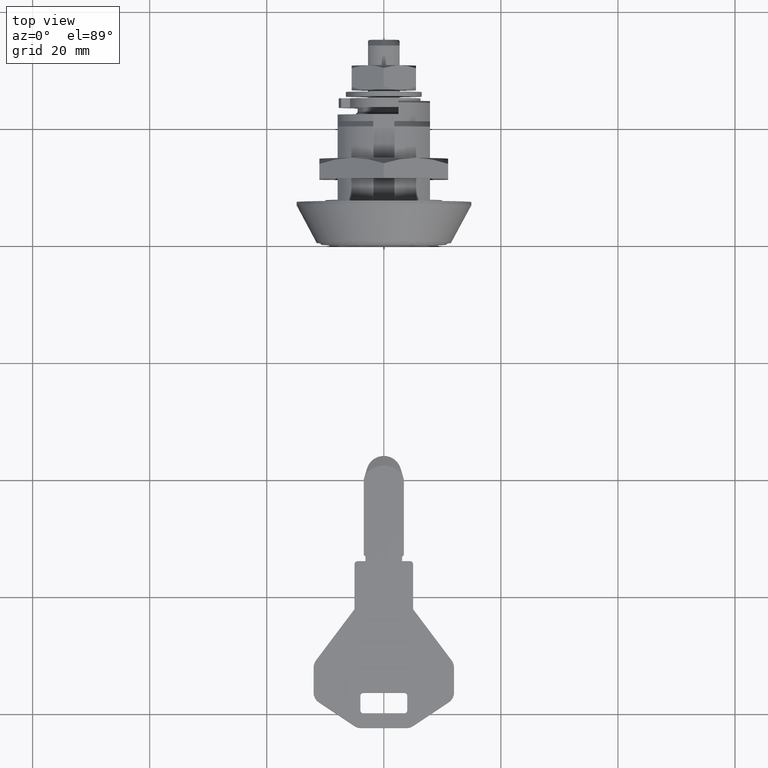
[diagram: clean part render]
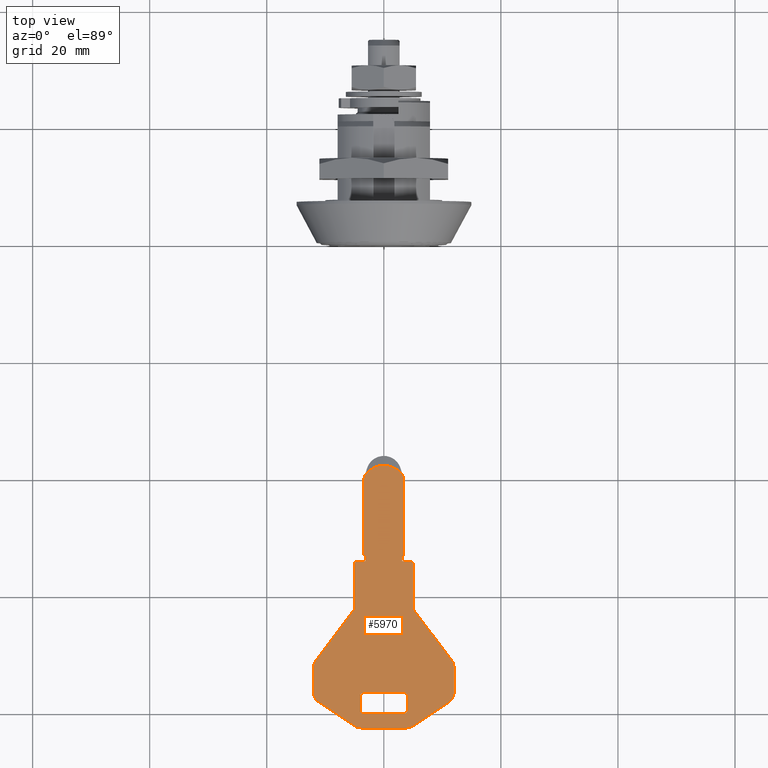
[diagram: same view with one face highlighted and labeled with its STEP entity id]
A machine part, top view. The second image highlights one B-rep face of the part: STEP entity #5970.
In plain terms, the highlighted face is a freeform B-spline surface patch.
Its self-contained STEP definition (entity closure, byte-faithful):
#5231=CARTESIAN_POINT('',(-39.328578723186801,3.202507733584880,0.999999999996405));
#5232=VERTEX_POINT('',#5231);
#5240=CARTESIAN_POINT('',(-39.328578274685853,-3.202507397941295,0.999999999996405));
#5241=VERTEX_POINT('',#5240);
#5242=CARTESIAN_POINT('',(-39.328578723186801,3.202507733584878,0.999999999996405));
#5243=CARTESIAN_POINT('',(-37.725231574246756,2.002614833839296,0.999999999996405));
#5244=CARTESIAN_POINT('',(-37.725231434016862,0.000000280093609,0.999999999996405));
#5245=CARTESIAN_POINT('',(-37.725231293786976,-2.002614273652079,0.999999999996405));
#5246=CARTESIAN_POINT('',(-39.328578274685853,-3.202507397941294,0.999999999996405));
#5254=(BOUNDED_CURVE()B_SPLINE_CURVE(2,(#5242,#5243,#5244,#5245,#5246),.UNSPECIFIED.,.F.,.U.)B_SPLINE_CURVE_WITH_KNOTS((3,2,3),(0.0,0.500000000000000,1.0),.UNSPECIFIED.)CURVE()GEOMETRIC_REPRESENTATION_ITEM()RATIONAL_B_SPLINE_CURVE((1.0,0.894193277141507,1.0,0.894193277141507,1.0))REPRESENTATION_ITEM(''));
#5255=EDGE_CURVE('',#5232,#5241,#5254,.T.);
#5619=CARTESIAN_POINT('',(-84.820265168130575,13.198799953479870,0.999999999996405));
#5620=CARTESIAN_POINT('',(-35.484745590624840,13.198799953479870,0.999999999996405));
#5621=CARTESIAN_POINT('',(-84.820265168130575,-13.198800597217121,0.999999999996405));
#5622=CARTESIAN_POINT('',(-35.484745590624840,-13.198800597217121,0.999999999996405));
#5623=B_SPLINE_SURFACE_WITH_KNOTS('',1,1,((#5619,#5621),(#5620,#5622)),.UNSPECIFIED.,.F.,.F.,.U.,(2,2),(2,2),(0.0,49.335519577505742),(0.0,26.397600550696989),.UNSPECIFIED.);
#5624=ORIENTED_EDGE('',*,*,#5255,.F.);
#5625=CARTESIAN_POINT('',(-40.079782934016862,3.424999999996415,0.999999999996448));
#5626=VERTEX_POINT('',#5625);
#5627=CARTESIAN_POINT('',(-39.328578723186801,3.202507733584880,0.999999999996405));
#5628=CARTESIAN_POINT('',(-40.079782934016862,3.424999999996415,0.999999999996448));
#5629=QUASI_UNIFORM_CURVE('',1,(#5627,#5628),.UNSPECIFIED.,.F.,.U.);
#5630=EDGE_CURVE('',#5232,#5626,#5629,.T.);
#5631=ORIENTED_EDGE('',*,*,#5630,.T.);
#5632=CARTESIAN_POINT('',(-52.979782934016903,3.424999999996415,0.999999999996448));
#5633=VERTEX_POINT('',#5632);
#5634=CARTESIAN_POINT('',(-40.079782934016862,3.424999999996415,0.999999999996448));
#5635=CARTESIAN_POINT('',(-52.979782934016903,3.424999999996415,0.999999999996448));
#5636=QUASI_UNIFORM_CURVE('',1,(#5634,#5635),.UNSPECIFIED.,.F.,.U.);
#5637=EDGE_CURVE('',#5626,#5633,#5636,.T.);
#5638=ORIENTED_EDGE('',*,*,#5637,.T.);
#5639=CARTESIAN_POINT('',(-53.279782934016900,3.124999999996520,0.999999999996448));
#5640=VERTEX_POINT('',#5639);
#5641=CARTESIAN_POINT('',(-52.979782934016903,3.424999999996415,0.999999999996448));
#5642=CARTESIAN_POINT('',(-53.279782934016900,3.124999999996520,0.999999999996448));
#5643=QUASI_UNIFORM_CURVE('',1,(#5641,#5642),.UNSPECIFIED.,.F.,.U.);
#5644=EDGE_CURVE('',#5633,#5640,#5643,.T.);
#5645=ORIENTED_EDGE('',*,*,#5644,.T.);
#5646=CARTESIAN_POINT('',(-54.079782934016997,3.124999999996406,0.999999999996448));
#5647=VERTEX_POINT('',#5646);
#5648=CARTESIAN_POINT('',(-53.279782934016900,3.124999999996520,0.999999999996448));
#5649=CARTESIAN_POINT('',(-54.079782934016997,3.124999999996406,0.999999999996448));
#5650=QUASI_UNIFORM_CURVE('',1,(#5648,#5649),.UNSPECIFIED.,.F.,.U.);
#5651=EDGE_CURVE('',#5640,#5647,#5650,.T.);
#5652=ORIENTED_EDGE('',*,*,#5651,.T.);
#5653=CARTESIAN_POINT('',(-54.079782934016997,4.499999999996520,0.999999999996448));
#5654=VERTEX_POINT('',#5653);
#5655=CARTESIAN_POINT('',(-54.079782934016997,3.124999999996406,0.999999999996448));
#5656=CARTESIAN_POINT('',(-54.079782934016997,4.499999999996520,0.999999999996448));
#5657=QUASI_UNIFORM_CURVE('',1,(#5655,#5656),.UNSPECIFIED.,.F.,.U.);
#5658=EDGE_CURVE('',#5647,#5654,#5657,.T.);
#5659=ORIENTED_EDGE('',*,*,#5658,.T.);
#5660=CARTESIAN_POINT('',(-54.579782934016997,4.999999999996520,0.999999999996448));
#5661=VERTEX_POINT('',#5660);
#5662=CARTESIAN_POINT('',(-54.079782934016997,4.499999999996520,0.999999999996448));
#5663=CARTESIAN_POINT('',(-54.079782934016997,4.999999999996520,0.999999999996448));
#5664=CARTESIAN_POINT('',(-54.579782934016997,4.999999999996519,0.999999999996448));
#5672=(BOUNDED_CURVE()B_SPLINE_CURVE(2,(#5662,#5663,#5664),.UNSPECIFIED.,.F.,.U.)CURVE()GEOMETRIC_REPRESENTATION_ITEM()QUASI_UNIFORM_CURVE()RATIONAL_B_SPLINE_CURVE((1.0,0.707106781186548,1.0))REPRESENTATION_ITEM(''));
#5673=EDGE_CURVE('',#5654,#5661,#5672,.T.);
#5674=ORIENTED_EDGE('',*,*,#5673,.T.);
#5675=CARTESIAN_POINT('',(-62.279782934016993,4.999999999996410,0.999999999996448));
#5676=VERTEX_POINT('',#5675);
#5677=CARTESIAN_POINT('',(-54.579782934016997,4.999999999996520,0.999999999996448));
#5678=CARTESIAN_POINT('',(-62.279782934016993,4.999999999996410,0.999999999996448));
#5679=QUASI_UNIFORM_CURVE('',1,(#5677,#5678),.UNSPECIFIED.,.F.,.U.);
#5680=EDGE_CURVE('',#5661,#5676,#5679,.T.);
#5681=ORIENTED_EDGE('',*,*,#5680,.T.);
#5682=CARTESIAN_POINT('',(-71.045611934016904,11.597935999996521,0.999999999996448));
#5683=VERTEX_POINT('',#5682);
#5684=CARTESIAN_POINT('',(-62.279782934016993,4.999999999996410,0.999999999996448));
#5685=CARTESIAN_POINT('',(-71.045611934016904,11.597935999996521,0.999999999996448));
#5686=QUASI_UNIFORM_CURVE('',1,(#5684,#5685),.UNSPECIFIED.,.F.,.U.);
#5687=EDGE_CURVE('',#5676,#5683,#5686,.T.);
#5688=ORIENTED_EDGE('',*,*,#5687,.T.);
#5689=CARTESIAN_POINT('',(-72.248359434016905,11.999999999996520,0.999999999996448));
#5690=VERTEX_POINT('',#5689);
#5691=CARTESIAN_POINT('',(-71.045611934016904,11.597935999996521,0.999999999996448));
#5692=CARTESIAN_POINT('',(-71.579783108207792,11.999999999996520,0.999999999996448));
#5693=CARTESIAN_POINT('',(-72.248359434016905,11.999999999996520,0.999999999996448));
#5701=(BOUNDED_CURVE()B_SPLINE_CURVE(2,(#5691,#5692,#5693),.UNSPECIFIED.,.F.,.U.)CURVE()GEOMETRIC_REPRESENTATION_ITEM()QUASI_UNIFORM_CURVE()RATIONAL_B_SPLINE_CURVE((1.0,0.948411276621312,1.0))REPRESENTATION_ITEM(''));
#5702=EDGE_CURVE('',#5683,#5690,#5701,.T.);
#5703=ORIENTED_EDGE('',*,*,#5702,.T.);
#5704=CARTESIAN_POINT('',(-76.509415434016901,11.999999999996520,0.999999999996448));
#5705=VERTEX_POINT('',#5704);
#5706=CARTESIAN_POINT('',(-72.248359434016905,11.999999999996520,0.999999999996448));
#5707=CARTESIAN_POINT('',(-76.509415434016901,11.999999999996520,0.999999999996448));
#5708=QUASI_UNIFORM_CURVE('',1,(#5706,#5707),.UNSPECIFIED.,.F.,.U.);
#5709=EDGE_CURVE('',#5690,#5705,#5708,.T.);
#5710=ORIENTED_EDGE('',*,*,#5709,.T.);
#5711=CARTESIAN_POINT('',(-78.173516013514302,11.109400406214441,0.999999999996448));
#5712=VERTEX_POINT('',#5711);
#5713=CARTESIAN_POINT('',(-76.509415434016901,11.999999999996520,0.999999999996448));
#5714=CARTESIAN_POINT('',(-77.579782940350057,11.999999999996524,0.999999999996448));
#5715=CARTESIAN_POINT('',(-78.173516013514288,11.109400406214430,0.999999999996448));
#5723=(BOUNDED_CURVE()B_SPLINE_CURVE(2,(#5713,#5714,#5715),.UNSPECIFIED.,.F.,.U.)CURVE()GEOMETRIC_REPRESENTATION_ITEM()QUASI_UNIFORM_CURVE()RATIONAL_B_SPLINE_CURVE((1.0,0.881674600719834,1.0))REPRESENTATION_ITEM(''));
#5724=EDGE_CURVE('',#5705,#5712,#5723,.T.);
#5725=ORIENTED_EDGE('',*,*,#5724,.T.);
#5726=CARTESIAN_POINT('',(-82.243883434016894,5.003848999996521,0.999999999996448));
#5727=VERTEX_POINT('',#5726);
#5728=CARTESIAN_POINT('',(-78.173516013514302,11.109400406214441,0.999999999996448));
#5729=CARTESIAN_POINT('',(-82.243883434016894,5.003848999996521,0.999999999996448));
#5730=QUASI_UNIFORM_CURVE('',1,(#5728,#5729),.UNSPECIFIED.,.F.,.U.);
#5731=EDGE_CURVE('',#5712,#5727,#5730,.T.);
#5732=ORIENTED_EDGE('',*,*,#5731,.T.);
#5733=CARTESIAN_POINT('',(-82.579782934016990,3.894448499996530,0.999999999996448));
#5734=VERTEX_POINT('',#5733);
#5735=CARTESIAN_POINT('',(-82.243883434016894,5.003848999996521,0.999999999996448));
#5736=CARTESIAN_POINT('',(-82.579782934016990,4.499999851154455,0.999999999996448));
#5737=CARTESIAN_POINT('',(-82.579782934016990,3.894448499996530,0.999999999996448));
#5745=(BOUNDED_CURVE()B_SPLINE_CURVE(2,(#5735,#5736,#5737),.UNSPECIFIED.,.F.,.U.)CURVE()GEOMETRIC_REPRESENTATION_ITEM()QUASI_UNIFORM_CURVE()RATIONAL_B_SPLINE_CURVE((1.0,0.957092016442591,1.0))REPRESENTATION_ITEM(''));
#5746=EDGE_CURVE('',#5727,#5734,#5745,.T.);
#5747=ORIENTED_EDGE('',*,*,#5746,.T.);
#5748=CARTESIAN_POINT('',(-82.579782934016990,-3.894448500003490,0.999999999996448));
#5749=VERTEX_POINT('',#5748);
#5750=CARTESIAN_POINT('',(-82.579782934016990,3.894448499996530,0.999999999996448));
#5751=CARTESIAN_POINT('',(-82.579782934016990,-3.894448500003490,0.999999999996448));
#5752=QUASI_UNIFORM_CURVE('',1,(#5750,#5751),.UNSPECIFIED.,.F.,.U.);
#5753=EDGE_CURVE('',#5734,#5749,#5752,.T.);
#5754=ORIENTED_EDGE('',*,*,#5753,.T.);
#5755=CARTESIAN_POINT('',(-82.243883513514405,-5.003848906221400,0.999999999996448));
#5756=VERTEX_POINT('',#5755);
#5757=CARTESIAN_POINT('',(-82.579782934016990,-3.894448500003490,0.999999999996448));
#5758=CARTESIAN_POINT('',(-82.579782934016990,-4.499999784499111,0.999999999996448));
#5759=CARTESIAN_POINT('',(-82.243883513514390,-5.003848906221389,0.999999999996448));
#5767=(BOUNDED_CURVE()B_SPLINE_CURVE(2,(#5757,#5758,#5759),.UNSPECIFIED.,.F.,.U.)CURVE()GEOMETRIC_REPRESENTATION_ITEM()QUASI_UNIFORM_CURVE()RATIONAL_B_SPLINE_CURVE((1.0,0.957092025290331,1.0))REPRESENTATION_ITEM(''));
#5768=EDGE_CURVE('',#5749,#5756,#5767,.T.);
#5769=ORIENTED_EDGE('',*,*,#5768,.T.);
#5770=CARTESIAN_POINT('',(-78.173515934016905,-11.109400500003479,0.999999999996448));
#5771=VERTEX_POINT('',#5770);
#5772=CARTESIAN_POINT('',(-82.243883513514405,-5.003848906221400,0.999999999996448));
#5773=CARTESIAN_POINT('',(-78.173515934016905,-11.109400500003479,0.999999999996448));
#5774=QUASI_UNIFORM_CURVE('',1,(#5772,#5773),.UNSPECIFIED.,.F.,.U.);
#5775=EDGE_CURVE('',#5756,#5771,#5774,.T.);
#5776=ORIENTED_EDGE('',*,*,#5775,.T.);
#5777=CARTESIAN_POINT('',(-76.509415434016901,-12.000000000003480,0.999999999996448));
#5778=VERTEX_POINT('',#5777);
#5779=CARTESIAN_POINT('',(-78.173515934016905,-11.109400500003479,0.999999999996448));
#5780=CARTESIAN_POINT('',(-77.579782861795607,-12.000000000003482,0.999999999996448));
#5781=CARTESIAN_POINT('',(-76.509415434016901,-12.000000000003480,0.999999999996448));
#5789=(BOUNDED_CURVE()B_SPLINE_CURVE(2,(#5779,#5780,#5781),.UNSPECIFIED.,.F.,.U.)CURVE()GEOMETRIC_REPRESENTATION_ITEM()QUASI_UNIFORM_CURVE()RATIONAL_B_SPLINE_CURVE((1.0,0.881674615126673,1.0))REPRESENTATION_ITEM(''));
#5790=EDGE_CURVE('',#5771,#5778,#5789,.T.);
#5791=ORIENTED_EDGE('',*,*,#5790,.T.);
#5792=CARTESIAN_POINT('',(-72.248359434016905,-12.000000000003601,0.999999999996448));
#5793=VERTEX_POINT('',#5792);
#5794=CARTESIAN_POINT('',(-76.509415434016901,-12.000000000003480,0.999999999996448));
#5795=CARTESIAN_POINT('',(-72.248359434016905,-12.000000000003601,0.999999999996448));
#5796=QUASI_UNIFORM_CURVE('',1,(#5794,#5795),.UNSPECIFIED.,.F.,.U.);
#5797=EDGE_CURVE('',#5778,#5793,#5796,.T.);
#5798=ORIENTED_EDGE('',*,*,#5797,.T.);
#5799=CARTESIAN_POINT('',(-71.045612104191704,-11.597935812418481,0.999999999996448));
#5800=VERTEX_POINT('',#5799);
#5801=CARTESIAN_POINT('',(-72.248359434016905,-12.000000000003480,0.999999999996448));
#5802=CARTESIAN_POINT('',(-71.579783121079345,-12.000000000003480,0.999999999996448));
#5803=CARTESIAN_POINT('',(-71.045612104191704,-11.597935812418481,0.999999999996448));
#5811=(BOUNDED_CURVE()B_SPLINE_CURVE(2,(#5801,#5802,#5803),.UNSPECIFIED.,.F.,.U.)CURVE()GEOMETRIC_REPRESENTATION_ITEM()QUASI_UNIFORM_CURVE()RATIONAL_B_SPLINE_CURVE((1.0,0.948411278456635,1.0))REPRESENTATION_ITEM(''));
#5812=EDGE_CURVE('',#5793,#5800,#5811,.T.);
#5813=ORIENTED_EDGE('',*,*,#5812,.T.);
#5814=CARTESIAN_POINT('',(-62.279782934016801,-5.000000000003480,0.999999999996448));
#5815=VERTEX_POINT('',#5814);
#5816=CARTESIAN_POINT('',(-71.045612104191704,-11.597935812418481,0.999999999996448));
#5817=CARTESIAN_POINT('',(-62.279782934016801,-5.000000000003480,0.999999999996448));
#5818=QUASI_UNIFORM_CURVE('',1,(#5816,#5817),.UNSPECIFIED.,.F.,.U.);
#5819=EDGE_CURVE('',#5800,#5815,#5818,.T.);
#5820=ORIENTED_EDGE('',*,*,#5819,.T.);
#5821=CARTESIAN_POINT('',(-54.579782934016997,-5.000000000003480,0.999999999996448));
#5822=VERTEX_POINT('',#5821);
#5823=CARTESIAN_POINT('',(-62.279782934016801,-5.000000000003480,0.999999999996448));
#5824=CARTESIAN_POINT('',(-54.579782934016997,-5.000000000003480,0.999999999996448));
#5825=QUASI_UNIFORM_CURVE('',1,(#5823,#5824),.UNSPECIFIED.,.F.,.U.);
#5826=EDGE_CURVE('',#5815,#5822,#5825,.T.);
#5827=ORIENTED_EDGE('',*,*,#5826,.T.);
#5828=CARTESIAN_POINT('',(-54.079782934016997,-4.500000000003480,0.999999999996448));
#5829=VERTEX_POINT('',#5828);
#5830=CARTESIAN_POINT('',(-54.579782934016997,-5.000000000003479,0.999999999996448));
#5831=CARTESIAN_POINT('',(-54.079782934016997,-5.000000000003479,0.999999999996448));
#5832=CARTESIAN_POINT('',(-54.079782934016997,-4.500000000003480,0.999999999996448));
#5840=(BOUNDED_CURVE()B_SPLINE_CURVE(2,(#5830,#5831,#5832),.UNSPECIFIED.,.F.,.U.)CURVE()GEOMETRIC_REPRESENTATION_ITEM()QUASI_UNIFORM_CURVE()RATIONAL_B_SPLINE_CURVE((1.0,0.707106781186548,1.0))REPRESENTATION_ITEM(''));
#5841=EDGE_CURVE('',#5822,#5829,#5840,.T.);
#5842=ORIENTED_EDGE('',*,*,#5841,.T.);
#5843=CARTESIAN_POINT('',(-54.079782934016997,-3.125000000003480,0.999999999996448));
#5844=VERTEX_POINT('',#5843);
#5845=CARTESIAN_POINT('',(-54.079782934016997,-4.500000000003480,0.999999999996448));
#5846=CARTESIAN_POINT('',(-54.079782934016997,-3.125000000003480,0.999999999996448));
#5847=QUASI_UNIFORM_CURVE('',1,(#5845,#5846),.UNSPECIFIED.,.F.,.U.);
#5848=EDGE_CURVE('',#5829,#5844,#5847,.T.);
#5849=ORIENTED_EDGE('',*,*,#5848,.T.);
#5850=CARTESIAN_POINT('',(-53.279782934016900,-3.125000000003595,0.999999999996448));
#5851=VERTEX_POINT('',#5850);
#5852=CARTESIAN_POINT('',(-54.079782934016997,-3.125000000003480,0.999999999996448));
#5853=CARTESIAN_POINT('',(-53.279782934016900,-3.125000000003595,0.999999999996448));
#5854=QUASI_UNIFORM_CURVE('',1,(#5852,#5853),.UNSPECIFIED.,.F.,.U.);
#5855=EDGE_CURVE('',#5844,#5851,#5854,.T.);
#5856=ORIENTED_EDGE('',*,*,#5855,.T.);
#5857=CARTESIAN_POINT('',(-52.979782934016903,-3.425000000003580,0.999999999996448));
#5858=VERTEX_POINT('',#5857);
#5859=CARTESIAN_POINT('',(-53.279782934016900,-3.125000000003595,0.999999999996448));
#5860=CARTESIAN_POINT('',(-52.979782934016903,-3.425000000003580,0.999999999996448));
#5861=QUASI_UNIFORM_CURVE('',1,(#5859,#5860),.UNSPECIFIED.,.F.,.U.);
#5862=EDGE_CURVE('',#5851,#5858,#5861,.T.);
#5863=ORIENTED_EDGE('',*,*,#5862,.T.);
#5864=CARTESIAN_POINT('',(-40.079782934016862,-3.425000000003580,0.999999999996448));
#5865=VERTEX_POINT('',#5864);
#5866=CARTESIAN_POINT('',(-52.979782934016903,-3.425000000003580,0.999999999996448));
#5867=CARTESIAN_POINT('',(-40.079782934016862,-3.425000000003580,0.999999999996448));
#5868=QUASI_UNIFORM_CURVE('',1,(#5866,#5867),.UNSPECIFIED.,.F.,.U.);
#5869=EDGE_CURVE('',#5858,#5865,#5868,.T.);
#5870=ORIENTED_EDGE('',*,*,#5869,.T.);
#5871=CARTESIAN_POINT('',(-40.079782934016862,-3.425000000003580,0.999999999996448));
#5872=CARTESIAN_POINT('',(-39.328578274685853,-3.202507397941295,0.999999999996405));
#5873=QUASI_UNIFORM_CURVE('',1,(#5871,#5872),.UNSPECIFIED.,.F.,.U.);
#5874=EDGE_CURVE('',#5865,#5241,#5873,.T.);
#5875=ORIENTED_EDGE('',*,*,#5874,.T.);
#5876=EDGE_LOOP('',(#5624,#5631,#5638,#5645,#5652,#5659,#5674,#5681,#5688,#5703,#5710,#5725,#5732,#5747,#5754,#5769,#5776,#5791,#5798,#5813,#5820,#5827,#5842,#5849,#5856,#5863,#5870,#5875));
#5877=FACE_OUTER_BOUND('',#5876,.T.);
#5878=CARTESIAN_POINT('',(-80.079782934016990,-3.500000000003480,0.999999999996448));
#5879=VERTEX_POINT('',#5878);
#5880=CARTESIAN_POINT('',(-79.579782934017004,-4.000000000003480,0.999999999996448));
#5881=VERTEX_POINT('',#5880);
#5882=CARTESIAN_POINT('',(-80.079782934017004,-3.500000000003480,0.999999999996448));
#5883=CARTESIAN_POINT('',(-80.079782934017004,-4.000000000003480,0.999999999996448));
#5884=CARTESIAN_POINT('',(-79.579782934017004,-4.000000000003480,0.999999999996448));
#5892=(BOUNDED_CURVE()B_SPLINE_CURVE(2,(#5882,#5883,#5884),.UNSPECIFIED.,.F.,.U.)CURVE()GEOMETRIC_REPRESENTATION_ITEM()QUASI_UNIFORM_CURVE()RATIONAL_B_SPLINE_CURVE((1.0,0.707106781186548,1.0))REPRESENTATION_ITEM(''));
#5893=EDGE_CURVE('',#5879,#5881,#5892,.T.);
#5894=ORIENTED_EDGE('',*,*,#5893,.F.);
#5895=CARTESIAN_POINT('',(-80.079782934016990,3.499999999996520,0.999999999996448));
#5896=VERTEX_POINT('',#5895);
#5897=CARTESIAN_POINT('',(-80.079782934016990,3.499999999996520,0.999999999996448));
#5898=CARTESIAN_POINT('',(-80.079782934016990,-3.500000000003480,0.999999999996448));
#5899=QUASI_UNIFORM_CURVE('',1,(#5897,#5898),.UNSPECIFIED.,.F.,.U.);
#5900=EDGE_CURVE('',#5896,#5879,#5899,.T.);
#5901=ORIENTED_EDGE('',*,*,#5900,.F.);
#5902=CARTESIAN_POINT('',(-79.579782934016905,3.999999999996520,0.999999999996448));
#5903=VERTEX_POINT('',#5902);
#5904=CARTESIAN_POINT('',(-79.579782934016905,3.999999999996520,0.999999999996448));
#5905=CARTESIAN_POINT('',(-79.786889715203486,3.999999999996560,0.999999999996448));
#5906=CARTESIAN_POINT('',(-79.933336324610252,3.853553390589828,0.999999999996448));
#5907=CARTESIAN_POINT('',(-80.079782934017018,3.707106781183096,0.999999999996448));
#5908=CARTESIAN_POINT('',(-80.079782934017004,3.499999999996520,0.999999999996448));
#5916=(BOUNDED_CURVE()B_SPLINE_CURVE(2,(#5904,#5905,#5906,#5907,#5908),.UNSPECIFIED.,.F.,.U.)B_SPLINE_CURVE_WITH_KNOTS((3,2,3),(0.0,0.500000000000000,1.0),.UNSPECIFIED.)CURVE()GEOMETRIC_REPRESENTATION_ITEM()RATIONAL_B_SPLINE_CURVE((1.0,0.923879532511268,1.0,0.923879532511268,1.0))REPRESENTATION_ITEM(''));
#5917=EDGE_CURVE('',#5903,#5896,#5916,.T.);
#5918=ORIENTED_EDGE('',*,*,#5917,.F.);
#5919=CARTESIAN_POINT('',(-77.079782934017004,3.999999999996520,0.999999999996448));
#5920=VERTEX_POINT('',#5919);
#5921=CARTESIAN_POINT('',(-77.079782934017004,3.999999999996520,0.999999999996448));
#5922=CARTESIAN_POINT('',(-79.579782934016905,3.999999999996520,0.999999999996448));
#5923=QUASI_UNIFORM_CURVE('',1,(#5921,#5922),.UNSPECIFIED.,.F.,.U.);
#5924=EDGE_CURVE('',#5920,#5903,#5923,.T.);
#5925=ORIENTED_EDGE('',*,*,#5924,.F.);
#5926=CARTESIAN_POINT('',(-76.579782934016905,3.499999999996520,0.999999999996448));
#5927=VERTEX_POINT('',#5926);
#5928=CARTESIAN_POINT('',(-76.579782934017004,3.499999999996520,0.999999999996448));
#5929=CARTESIAN_POINT('',(-76.579782934016990,3.999999999996521,0.999999999996448));
#5930=CARTESIAN_POINT('',(-77.079782934017004,3.999999999996520,0.999999999996448));
#5938=(BOUNDED_CURVE()B_SPLINE_CURVE(2,(#5928,#5929,#5930),.UNSPECIFIED.,.F.,.U.)CURVE()GEOMETRIC_REPRESENTATION_ITEM()QUASI_UNIFORM_CURVE()RATIONAL_B_SPLINE_CURVE((1.0,0.707106781186548,1.0))REPRESENTATION_ITEM(''));
#5939=EDGE_CURVE('',#5927,#5920,#5938,.T.);
#5940=ORIENTED_EDGE('',*,*,#5939,.F.);
#5941=CARTESIAN_POINT('',(-76.579782934017004,-3.500000000003480,0.999999999996448));
#5942=VERTEX_POINT('',#5941);
#5943=CARTESIAN_POINT('',(-76.579782934017004,-3.500000000003480,0.999999999996448));
#5944=CARTESIAN_POINT('',(-76.579782934016905,3.499999999996520,0.999999999996448));
#5945=QUASI_UNIFORM_CURVE('',1,(#5943,#5944),.UNSPECIFIED.,.F.,.U.);
#5946=EDGE_CURVE('',#5942,#5927,#5945,.T.);
#5947=ORIENTED_EDGE('',*,*,#5946,.F.);
#5948=CARTESIAN_POINT('',(-77.079782934017004,-4.000000000003480,0.999999999996448));
#5949=VERTEX_POINT('',#5948);
#5950=CARTESIAN_POINT('',(-77.079782934017004,-4.000000000003480,0.999999999996448));
#5951=CARTESIAN_POINT('',(-76.579782934016990,-4.000000000003480,0.999999999996448));
#5952=CARTESIAN_POINT('',(-76.579782934017004,-3.500000000003480,0.999999999996448));
#5960=(BOUNDED_CURVE()B_SPLINE_CURVE(2,(#5950,#5951,#5952),.UNSPECIFIED.,.F.,.U.)CURVE()GEOMETRIC_REPRESENTATION_ITEM()QUASI_UNIFORM_CURVE()RATIONAL_B_SPLINE_CURVE((1.0,0.707106781186548,1.0))REPRESENTATION_ITEM(''));
#5961=EDGE_CURVE('',#5949,#5942,#5960,.T.);
#5962=ORIENTED_EDGE('',*,*,#5961,.F.);
#5963=CARTESIAN_POINT('',(-79.579782934017004,-4.000000000003480,0.999999999996448));
#5964=CARTESIAN_POINT('',(-77.079782934017004,-4.000000000003480,0.999999999996448));
#5965=QUASI_UNIFORM_CURVE('',1,(#5963,#5964),.UNSPECIFIED.,.F.,.U.);
#5966=EDGE_CURVE('',#5881,#5949,#5965,.T.);
#5967=ORIENTED_EDGE('',*,*,#5966,.F.);
#5968=EDGE_LOOP('',(#5894,#5901,#5918,#5925,#5940,#5947,#5962,#5967));
#5969=FACE_BOUND('',#5968,.T.);
#5970=ADVANCED_FACE('',(#5877,#5969),#5623,.F.);